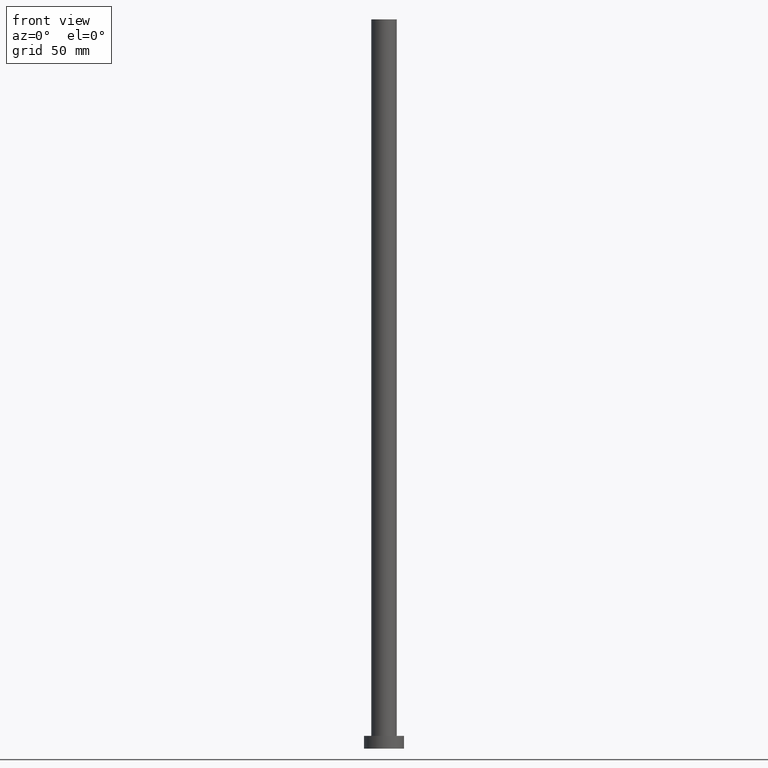
[diagram: clean part render]
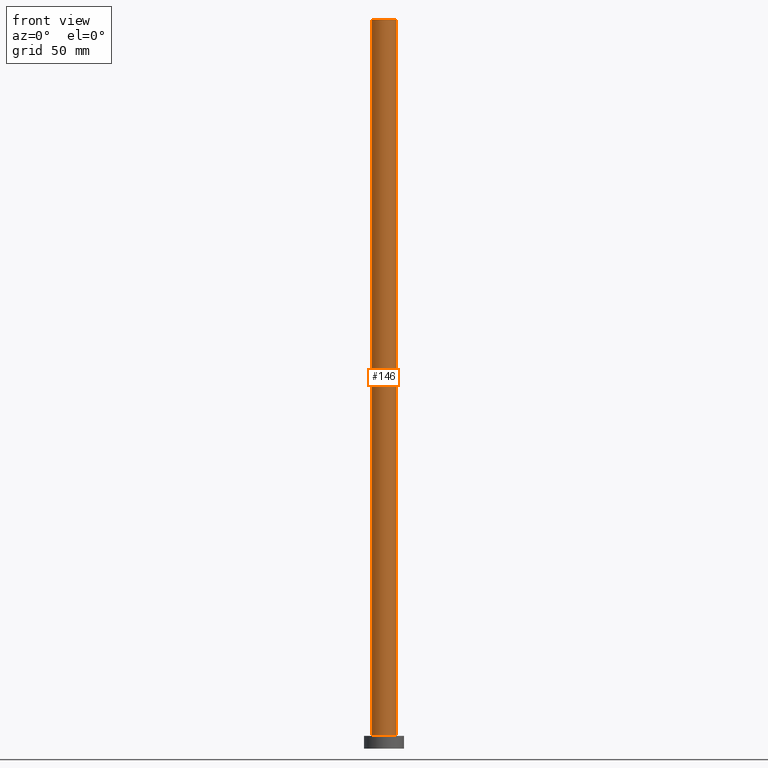
[diagram: same view with one face highlighted and labeled with its STEP entity id]
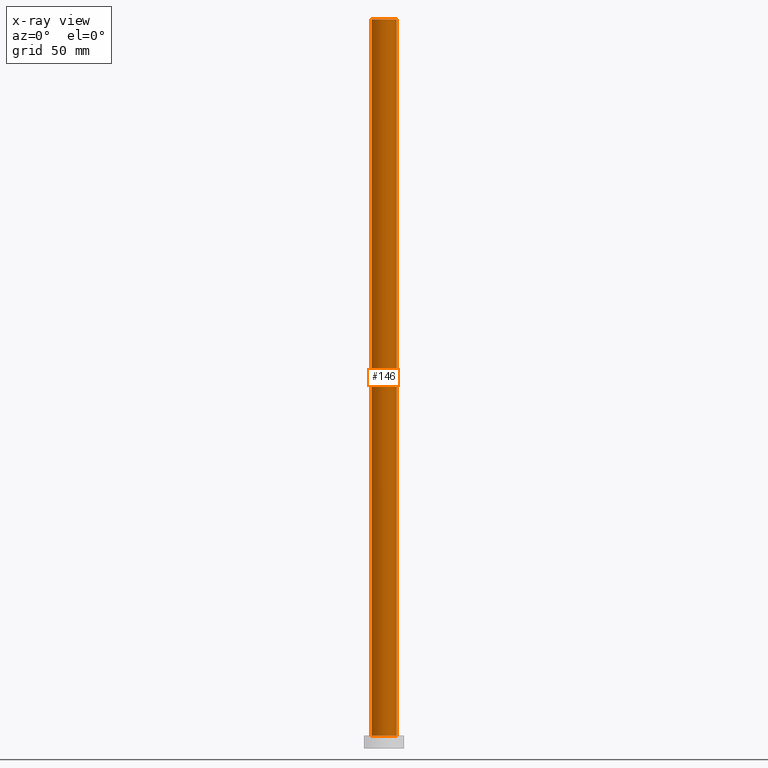
[diagram: x-ray of the same camera — body ghosted, the highlighted face saturated]
A machine part, front view. The second image highlights one B-rep face of the part: STEP entity #146.
The next image is the same camera in x-ray: the body ghosted, the highlighted face saturated — about 0% of this face is hidden behind the body in this view.
In plain terms, the highlighted cylindrical surface (edge-blend (fillet) strip) has radius 7 mm, axis along (-0, -0, -1).
Its self-contained STEP definition (entity closure, byte-faithful):
#8 = VECTOR ( 'NONE', #162, 1000.000000000000000 ) ;
#12 = ORIENTED_EDGE ( 'NONE', *, *, #189, .T. ) ;
#14 = EDGE_CURVE ( 'NONE', #97, #37, #17, .T. ) ;
#17 = CIRCLE ( 'NONE', #53, 7.000000000000000000 ) ;
#19 = CARTESIAN_POINT ( 'NONE',  ( 7.000000000000000000, 8.572527594031473190E-16, 400.0000000000000000 ) ) ;
#31 = EDGE_LOOP ( 'NONE', ( #172, #33, #12, #194 ) ) ;
#33 = ORIENTED_EDGE ( 'NONE', *, *, #14, .F. ) ;
#37 = VERTEX_POINT ( 'NONE', #106 ) ;
#53 = AXIS2_PLACEMENT_3D ( 'NONE', #156, #224, #158 ) ;
#60 = CARTESIAN_POINT ( 'NONE',  ( -7.000000000000000000, 0.000000000000000000, 7.000000000000000000 ) ) ;
#64 = DIRECTION ( 'NONE',  ( 0.000000000000000000, 0.000000000000000000, 1.000000000000000000 ) ) ;
#73 = EDGE_CURVE ( 'NONE', #37, #169, #231, .T. ) ;
#89 = LINE ( 'NONE', #128, #8 ) ;
#91 = VECTOR ( 'NONE', #107, 1000.000000000000000 ) ;
#97 = VERTEX_POINT ( 'NONE', #232 ) ;
#101 = VERTEX_POINT ( 'NONE', #60 ) ;
#106 = CARTESIAN_POINT ( 'NONE',  ( 7.000000000000000000, 8.572527594031473190E-16, 400.0000000000000000 ) ) ;
#107 = DIRECTION ( 'NONE',  ( -0.000000000000000000, -0.000000000000000000, -1.000000000000000000 ) ) ;
#115 = AXIS2_PLACEMENT_3D ( 'NONE', #216, #212, #150 ) ;
#125 = DIRECTION ( 'NONE',  ( 1.000000000000000000, 0.000000000000000000, 0.000000000000000000 ) ) ;
#128 = CARTESIAN_POINT ( 'NONE',  ( -7.000000000000000000, 0.000000000000000000, 400.0000000000000000 ) ) ;
#145 = CYLINDRICAL_SURFACE ( 'NONE', #115, 7.000000000000000000 ) ;
#146 = ADVANCED_FACE ( 'NONE', ( #160 ), #145, .T. ) ;
#147 = CARTESIAN_POINT ( 'NONE',  ( 7.000000000000000000, 8.572527594031473190E-16, 7.000000000000000000 ) ) ;
#148 = AXIS2_PLACEMENT_3D ( 'NONE', #214, #64, #125 ) ;
#150 = DIRECTION ( 'NONE',  ( -1.000000000000000000, 0.000000000000000000, 0.000000000000000000 ) ) ;
#156 = CARTESIAN_POINT ( 'NONE',  ( 0.000000000000000000, 0.000000000000000000, 400.0000000000000000 ) ) ;
#158 = DIRECTION ( 'NONE',  ( 1.000000000000000000, 0.000000000000000000, 0.000000000000000000 ) ) ;
#160 = FACE_OUTER_BOUND ( 'NONE', #31, .T. ) ;
#162 = DIRECTION ( 'NONE',  ( -0.000000000000000000, -0.000000000000000000, -1.000000000000000000 ) ) ;
#169 = VERTEX_POINT ( 'NONE', #147 ) ;
#172 = ORIENTED_EDGE ( 'NONE', *, *, #73, .F. ) ;
#174 = EDGE_CURVE ( 'NONE', #101, #169, #225, .T. ) ;
#189 = EDGE_CURVE ( 'NONE', #97, #101, #89, .T. ) ;
#194 = ORIENTED_EDGE ( 'NONE', *, *, #174, .T. ) ;
#212 = DIRECTION ( 'NONE',  ( -0.000000000000000000, -0.000000000000000000, -1.000000000000000000 ) ) ;
#214 = CARTESIAN_POINT ( 'NONE',  ( 0.000000000000000000, 0.000000000000000000, 7.000000000000000000 ) ) ;
#216 = CARTESIAN_POINT ( 'NONE',  ( 0.000000000000000000, 0.000000000000000000, 400.0000000000000000 ) ) ;
#224 = DIRECTION ( 'NONE',  ( 0.000000000000000000, 0.000000000000000000, 1.000000000000000000 ) ) ;
#225 = CIRCLE ( 'NONE', #148, 7.000000000000000000 ) ;
#231 = LINE ( 'NONE', #19, #91 ) ;
#232 = CARTESIAN_POINT ( 'NONE',  ( -7.000000000000000000, 0.000000000000000000, 400.0000000000000000 ) ) ;